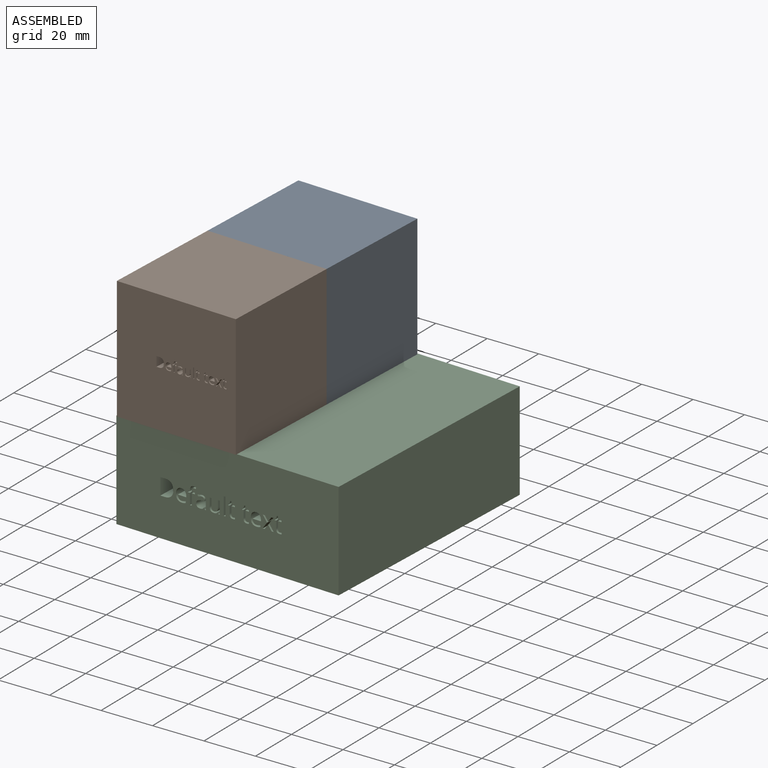
[diagram: assembled view]
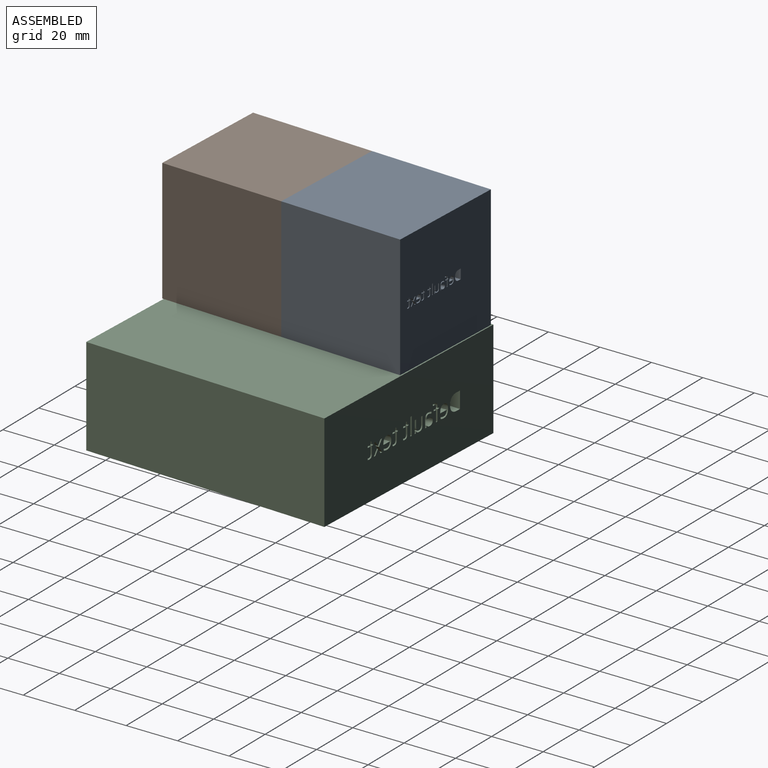
[diagram: assembled view, second angle]
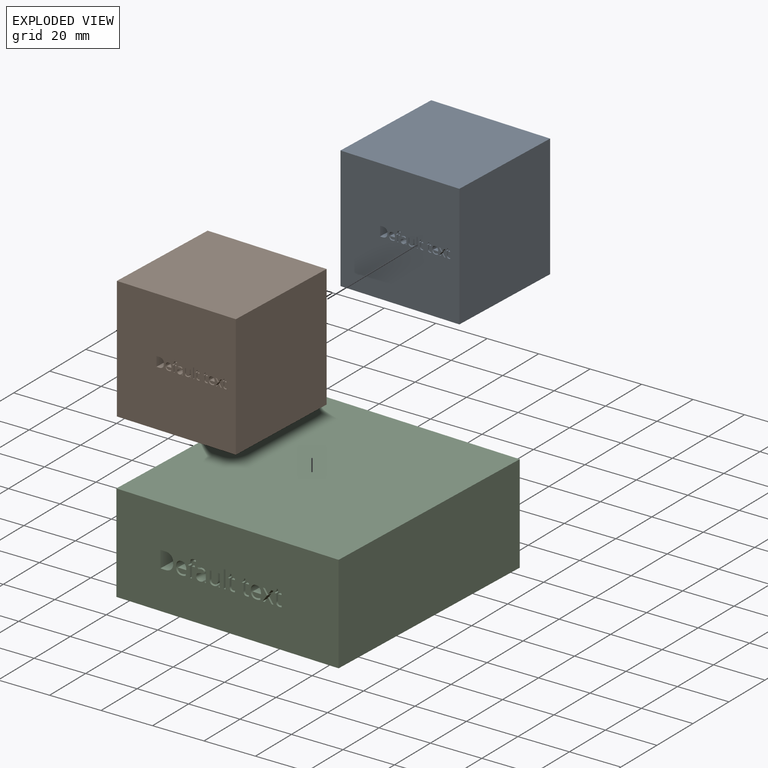
[diagram: exploded view]
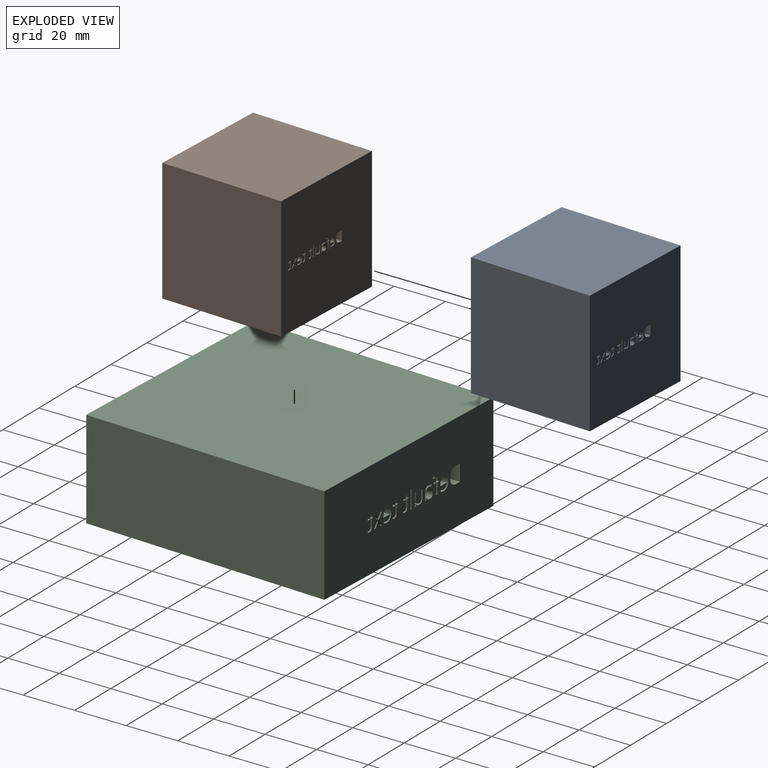
[diagram: exploded view, second angle]
ASSEMBLY  parts=3 mates=2
PART A: 167 faces, bbox 47.6x47.6x47.6 mm
  f0: extruded ~47.63x1.36mm, area 70.5mm2, adj f1,f164,f165,f166
  f1: extruded ~47.63x1.42mm, area 73.9mm2, adj f0,f2,f165,f166
  f2: extruded ~47.63x1.45mm, area 75mm2, adj f1,f3,f165,f166
  f3: plane 47.63x1.04mm, normal (0,0,1), area 49.6mm2, adj f2,f4,f165,f166
  f4: plane 47.63x3.76mm, normal (1,0,0), area 178.9mm2, adj f3,f5,f165,f166
  f5: plane 47.63x1.15mm, normal (0,0,-1), area 54.8mm2, adj f4,f164,f165,f166
  f6: plane 47.63x0.33mm, normal (-1,0,0), area 15.8mm2, adj f7,f153,f165,f166
  f7: plane 47.63x0.72mm, normal (0,0,1), area 34.1mm2, adj f6,f8,f165,f166
  f8: plane 47.63x2.48mm, normal (-1,0,0), area 118.3mm2, adj f7,f9,f165,f166
  f9: plane 47.63x0.43mm, normal (0,0,1), area 20.3mm2, adj f8,f10,f165,f166
  f10: plane 47.63x2.48mm, normal (1,0,0), area 118.3mm2, adj f9,f11,f165,f166
  f11: plane 47.63x0.5mm, normal (0,0,1), area 24mm2, adj f10,f12,f165,f166
  f12: plane 47.63x0.19mm, normal (1,0,0), area 9.2mm2, adj f11,f13,f165,f166
  f13: plane 47.63x0.5mm, normal (0.29,0,-0.96), area 25.1mm2, adj f12,f14,f165,f166
  f14: plane 47.63x0.16mm, normal (1,0,0), area 7.4mm2, adj f13,f15,f165,f166
  f15: extruded ~47.63x1.04mm, area 75.3mm2, adj f14,f16,f165,f166
  f16: extruded ~47.63x0.52mm, area 25.4mm2, adj f15,f17,f165,f166
  f17: plane 47.63x0.34mm, normal (-0.95,0,0.31), area 17.1mm2, adj f16,f18,f165,f166
  f18: extruded ~47.63x0.42mm, area 20.5mm2, adj f17,f19,f165,f166
  f19: extruded ~47.63x0.36mm, area 19.4mm2, adj f18,f20,f165,f166
  f20: extruded ~47.63x0.52mm, area 25.5mm2, adj f19,f21,f165,f166
  f21: plane 47.63x0.18mm, normal (-1,0,0), area 8.7mm2, adj f20,f153,f165,f166
  f22: plane 47.63x0.32mm, normal (0,0,1), area 15.1mm2, adj f23,f154,f165,f166
  f23: plane 47.63x0.4mm, normal (0.98,0,0.21), area 19.5mm2, adj f22,f24,f165,f166
  f24: plane 47.63x0.02mm, normal (0,0,1), area 1mm2, adj f23,f25,f165,f166
  f25: extruded ~47.63x0.42mm, area 26.5mm2, adj f24,f26,f165,f166
  f26: extruded ~47.63x0.52mm, area 25.5mm2, adj f25,f27,f165,f166
  f27: extruded ~47.63x0.66mm, area 33.7mm2, adj f26,f28,f165,f166
  f28: extruded ~47.63x0.61mm, area 32.3mm2, adj f27,f29,f165,f166
  f29: extruded ~47.63x1.36mm, area 87.3mm2, adj f28,f30,f165,f166
  f30: plane 47.63x0.48mm, normal (0.03,0,-1), area 22.8mm2, adj f29,f31,f165,f166
  f31: plane 47.63x0.18mm, normal (1,0,0), area 8.3mm2, adj f30,f32,f165,f166
  f32: extruded ~47.63x0.49mm, area 24.8mm2, adj f31,f33,f165,f166
  f33: extruded ~47.63x0.46mm, area 23.7mm2, adj f32,f34,f165,f166
  f34: extruded ~47.63x0.8mm, area 39.6mm2, adj f33,f35,f165,f166
  f35: plane 47.63x0.33mm, normal (0.93,0,0.37), area 16.8mm2, adj f34,f36,f165,f166
  f36: extruded ~47.63x0.46mm, area 23.3mm2, adj f35,f37,f165,f166
  f37: extruded ~47.63x0.5mm, area 24mm2, adj f36,f38,f165,f166
  f38: extruded ~47.63x0.75mm, area 37.9mm2, adj f37,f39,f165,f166
  f39: extruded ~47.63x0.72mm, area 37.1mm2, adj f38,f154,f165,f166
  f40: plane 47.63x1.44mm, normal (0.81,0,-0.58), area 84.4mm2, adj f41,f155,f165,f166
  f41: plane 47.63x1.37mm, normal (0.81,0,0.58), area 80.4mm2, adj f40,f42,f165,f166
  f42: plane 47.63x0.49mm, normal (0,0,-1), area 23.1mm2, adj f41,f43,f165,f166
  f43: plane 47.63x1.08mm, normal (-0.82,0,-0.57), area 62.4mm2, adj f42,f44,f165,f166
  f44: plane 47.63x1.08mm, normal (0.82,0,-0.57), area 62.3mm2, adj f43,f45,f165,f166
  f45: plane 47.63x0.48mm, normal (0,0,-1), area 22.9mm2, adj f44,f46,f165,f166
  f46: plane 47.63x1.37mm, normal (-0.81,0,0.58), area 80.4mm2, adj f45,f47,f165,f166
  f47: plane 47.63x1.44mm, normal (-0.81,0,-0.58), area 84.4mm2, adj f46,f48,f165,f166
  f48: plane 47.63x0.48mm, normal (0,0,1), area 23mm2, adj f47,f49,f165,f166
  f49: plane 47.63x1.14mm, normal (0.82,0,0.57), area 66.1mm2, adj f48,f50,f165,f166
  f50: plane 47.63x1.14mm, normal (-0.82,0,0.57), area 66.3mm2, adj f49,f155,f165,f166
  f51: extruded ~47.63x0.33mm, area 17.6mm2, adj f52,f156,f165,f166
  f52: extruded ~47.63x0.22mm, area 10.5mm2, adj f51,f53,f165,f166
  f53: extruded ~47.63x0.17mm, area 8.1mm2, adj f52,f54,f165,f166
  f54: plane 47.63x0.33mm, normal (-1,0,0), area 15.5mm2, adj f53,f55,f165,f166
  f55: extruded ~47.63x0.2mm, area 10.1mm2, adj f54,f56,f165,f166
  f56: extruded ~47.63x0.24mm, area 11.7mm2, adj f55,f57,f165,f166
  f57: extruded ~47.63x0.86mm, area 64.8mm2, adj f56,f58,f165,f166
  f58: plane 47.63x1.68mm, normal (1,0,0), area 79.8mm2, adj f57,f59,f165,f166
  f59: plane 47.63x0.4mm, normal (0,0,1), area 19.2mm2, adj f58,f60,f165,f166
  f60: plane 47.63x0.21mm, normal (1,0,0), area 9.8mm2, adj f59,f61,f165,f166
  f61: plane 47.63x0.4mm, normal (0.4,0,-0.92), area 21mm2, adj f60,f62,f165,f166
  f62: plane 47.63x0.6mm, normal (0.96,0,-0.29), area 29.9mm2, adj f61,f63,f165,f166
  f63: plane 47.63x0.25mm, normal (0,0,-1), area 11.7mm2, adj f62,f64,f165,f166
  f64: plane 47.63x0.65mm, normal (-1,0,0), area 31.1mm2, adj f63,f65,f165,f166
  f65: plane 47.63x0.82mm, normal (0,0,-1), area 38.9mm2, adj f64,f66,f165,f166
  f66: plane 47.63x0.33mm, normal (-1,0,0), area 15.8mm2, adj f65,f67,f165,f166
  f67: plane 47.63x0.82mm, normal (0,0,1), area 38.9mm2, adj f66,f68,f165,f166
  f68: plane 47.63x1.66mm, normal (-1,0,0), area 78.9mm2, adj f67,f156,f165,f166
  f69: extruded ~47.63x0.49mm, area 23.3mm2, adj f70,f157,f165,f166
  f70: extruded ~47.63x0.99mm, area 51.8mm2, adj f69,f71,f165,f166
  f71: extruded ~47.63x1.06mm, area 54.5mm2, adj f70,f72,f165,f166
  f72: extruded ~47.63x1.08mm, area 55.1mm2, adj f71,f73,f165,f166
  f73: extruded ~47.63x0.9mm, area 48.6mm2, adj f72,f74,f165,f166
  f74: extruded ~47.63x0.84mm, area 44.6mm2, adj f73,f75,f165,f166
  f75: extruded ~47.63x0.92mm, area 47.2mm2, adj f74,f76,f165,f166
  f76: plane 47.63x0.27mm, normal (-1,0,0), area 12.8mm2, adj f75,f77,f165,f166
  f77: plane 47.63x1.94mm, normal (0,0,1), area 92.4mm2, adj f76,f78,f165,f166
  f78: extruded ~47.63x0.75mm, area 38.6mm2, adj f77,f79,f165,f166
  f79: extruded ~47.63x0.67mm, area 35.2mm2, adj f78,f80,f165,f166
  f80: extruded ~47.63x0.9mm, area 44mm2, adj f79,f81,f165,f166
  f81: plane 47.63x0.38mm, normal (-1,0,0), area 18.1mm2, adj f80,f157,f165,f166
  f82: extruded ~47.63x0.33mm, area 17.6mm2, adj f83,f158,f165,f166
  f83: extruded ~47.63x0.22mm, area 10.5mm2, adj f82,f84,f165,f166
  f84: extruded ~47.63x0.17mm, area 8.1mm2, adj f83,f85,f165,f166
  f85: plane 47.63x0.33mm, normal (-1,0,0), area 15.5mm2, adj f84,f86,f165,f166
  f86: extruded ~47.63x0.2mm, area 10.1mm2, adj f85,f87,f165,f166
  f87: extruded ~47.63x0.24mm, area 11.7mm2, adj f86,f88,f165,f166
  f88: extruded ~47.63x0.86mm, area 64.8mm2, adj f87,f89,f165,f166
  f89: plane 47.63x1.68mm, normal (1,0,0), area 79.8mm2, adj f88,f90,f165,f166
  f90: plane 47.63x0.4mm, normal (0,0,1), area 19.2mm2, adj f89,f91,f165,f166
  f91: plane 47.63x0.21mm, normal (1,0,0), area 9.8mm2, adj f90,f92,f165,f166
  f92: plane 47.63x0.4mm, normal (0.4,0,-0.92), area 21mm2, adj f91,f93,f165,f166
  f93: plane 47.63x0.6mm, normal (0.96,0,-0.29), area 29.9mm2, adj f92,f94,f165,f166
  f94: plane 47.63x0.25mm, normal (0,0,-1), area 11.7mm2, adj f93,f95,f165,f166
  f95: plane 47.63x0.65mm, normal (-1,0,0), area 31.1mm2, adj f94,f96,f165,f166
  f96: plane 47.63x0.82mm, normal (0,0,-1), area 38.9mm2, adj f95,f97,f165,f166
  f97: plane 47.63x0.33mm, normal (-1,0,0), area 15.8mm2, adj f96,f98,f165,f166
  f98: plane 47.63x0.82mm, normal (0,0,1), area 38.9mm2, adj f97,f99,f165,f166
  f99: plane 47.63x1.66mm, normal (-1,0,0), area 78.9mm2, adj f98,f158,f165,f166
  f100: extruded ~47.63x0.33mm, area 17.6mm2, adj f101,f159,f165,f166
  f101: extruded ~47.63x0.22mm, area 10.5mm2, adj f100,f102,f165,f166
  f102: extruded ~47.63x0.17mm, area 8.1mm2, adj f101,f103,f165,f166
  f103: plane 47.63x0.33mm, normal (-1,0,0), area 15.5mm2, adj f102,f104,f165,f166
  f104: extruded ~47.63x0.2mm, area 10.1mm2, adj f103,f105,f165,f166
  f105: extruded ~47.63x0.24mm, area 11.7mm2, adj f104,f106,f165,f166
  f106: extruded ~47.63x0.86mm, area 64.8mm2, adj f105,f107,f165,f166
  f107: plane 47.63x1.68mm, normal (1,0,0), area 79.8mm2, adj f106,f108,f165,f166
  f108: plane 47.63x0.4mm, normal (0,0,1), area 19.2mm2, adj f107,f109,f165,f166
  f109: plane 47.63x0.21mm, normal (1,0,0), area 9.8mm2, adj f108,f110,f165,f166
  f110: plane 47.63x0.4mm, normal (0.4,0,-0.92), area 21mm2, adj f109,f111,f165,f166
  f111: plane 47.63x0.6mm, normal (0.96,0,-0.29), area 29.9mm2, adj f110,f112,f165,f166
  f112: plane 47.63x0.25mm, normal (0,0,-1), area 11.7mm2, adj f111,f113,f165,f166
  f113: plane 47.63x0.65mm, normal (-1,0,0), area 31.1mm2, adj f112,f114,f165,f166
  f114: plane 47.63x0.82mm, normal (0,0,-1), area 38.9mm2, adj f113,f115,f165,f166
  f115: plane 47.63x0.33mm, normal (-1,0,0), area 15.8mm2, adj f114,f116,f165,f166
  f116: plane 47.63x0.82mm, normal (0,0,1), area 38.9mm2, adj f115,f117,f165,f166
  f117: plane 47.63x1.66mm, normal (-1,0,0), area 78.9mm2, adj f116,f159,f165,f166
  f118: plane 47.63x4mm, normal (-1,0,0), area 190.4mm2, adj f119,f160,f165,f166
  f119: plane 47.63x0.43mm, normal (0,0,1), area 20.3mm2, adj f118,f120,f165,f166
  f120: plane 47.63x4mm, normal (1,0,0), area 190.4mm2, adj f119,f160,f165,f166
  f121: plane 47.63x0.43mm, normal (0,0,-1), area 20.6mm2, adj f122,f161,f165,f166
  f122: plane 47.63x1.83mm, normal (-1,0,0), area 87mm2, adj f121,f123,f165,f166
  f123: extruded ~47.63x0.51mm, area 26.2mm2, adj f122,f124,f165,f166
  f124: extruded ~47.63x0.49mm, area 25.4mm2, adj f123,f125,f165,f166
  f125: extruded ~47.63x0.65mm, area 33.9mm2, adj f124,f126,f165,f166
  f126: extruded ~47.63x0.79mm, area 39.6mm2, adj f125,f127,f165,f166
  f127: plane 47.63x1.48mm, normal (1,0,0), area 70.5mm2, adj f126,f128,f165,f166
  f128: plane 47.63x0.43mm, normal (0,0,-1), area 20.3mm2, adj f127,f129,f165,f166
  f129: plane 47.63x2.82mm, normal (-1,0,0), area 134.1mm2, adj f128,f130,f165,f166
  f130: plane 47.63x0.35mm, normal (0,0,1), area 16.8mm2, adj f129,f131,f165,f166
  f131: plane 47.63x0.38mm, normal (0.99,0,0.16), area 18.2mm2, adj f130,f132,f165,f166
  f132: plane 47.63x0.02mm, normal (0,0,1), area 1.1mm2, adj f131,f133,f165,f166
  f133: extruded ~47.63x0.36mm, area 23.3mm2, adj f132,f134,f165,f166
  f134: extruded ~47.63x0.53mm, area 26.1mm2, adj f133,f135,f165,f166
  f135: extruded ~47.63x0.77mm, area 39.4mm2, adj f134,f136,f165,f166
  f136: extruded ~47.63x0.78mm, area 40.2mm2, adj f135,f161,f165,f166
  f137: extruded ~47.63x0.49mm, area 23.3mm2, adj f138,f162,f165,f166
  f138: extruded ~47.63x0.99mm, area 51.8mm2, adj f137,f139,f165,f166
  f139: extruded ~47.63x1.06mm, area 54.5mm2, adj f138,f140,f165,f166
  f140: extruded ~47.63x1.08mm, area 55.1mm2, adj f139,f141,f165,f166
  f141: extruded ~47.63x0.9mm, area 48.6mm2, adj f140,f142,f165,f166
  f142: extruded ~47.63x0.84mm, area 44.6mm2, adj f141,f143,f165,f166
  f143: extruded ~47.63x0.92mm, area 47.2mm2, adj f142,f144,f165,f166
  f144: plane 47.63x0.27mm, normal (-1,0,0), area 12.8mm2, adj f143,f145,f165,f166
  f145: plane 47.63x1.94mm, normal (0,0,1), area 92.4mm2, adj f144,f146,f165,f166
  f146: extruded ~47.63x0.75mm, area 38.6mm2, adj f145,f147,f165,f166
  f147: extruded ~47.63x0.67mm, area 35.2mm2, adj f146,f148,f165,f166
  f148: extruded ~47.63x0.9mm, area 44mm2, adj f147,f149,f165,f166
  f149: plane 47.63x0.38mm, normal (-1,0,0), area 18.1mm2, adj f148,f162,f165,f166
  f150: plane 47.63x47.63mm, normal (1,0,0), area 2268.1mm2, adj f151,f163,f165,f166
  f151: plane 47.63x47.63mm, normal (0,0,1), area 2268.1mm2, adj f150,f152,f165,f166
  f152: plane 47.63x47.63mm, normal (-1,0,0), area 2268.1mm2, adj f151,f163,f165,f166
  f153: plane 47.63x0.72mm, normal (0,0,-1), area 34.1mm2, adj f6,f21,f165,f166
  f154: plane 47.63x1.92mm, normal (-1,0,0), area 91.6mm2, adj f22,f39,f165,f166
  f155: plane 47.63x0.48mm, normal (0,0,1), area 23mm2, adj f40,f50,f165,f166
  f156: extruded ~47.63x0.39mm, area 19.9mm2, adj f51,f68,f165,f166
  f157: extruded ~47.63x0.43mm, area 21.5mm2, adj f69,f81,f165,f166
  f158: extruded ~47.63x0.39mm, area 19.9mm2, adj f82,f99,f165,f166
  f159: extruded ~47.63x0.39mm, area 19.9mm2, adj f100,f117,f165,f166
  f160: plane 47.63x0.43mm, normal (0,0,-1), area 20.3mm2, adj f118,f120,f165,f166
  f161: plane 47.63x1.84mm, normal (1,0,0), area 87.8mm2, adj f121,f136,f165,f166
  f162: extruded ~47.63x0.43mm, area 21.5mm2, adj f137,f149,f165,f166
  f163: plane 47.63x47.63mm, normal (0,0,-1), area 2268.1mm2, adj f150,f152,f165,f166
  f164: extruded ~47.63x1.36mm, area 70.7mm2, adj f0,f5,f165,f166
  f165: plane 47.63x47.63mm, normal (0,-1,0), area 2229.9mm2, adj f0,f1,f2,f3,f4,f5,f6,f7
  f166: plane 47.63x47.63mm, normal (0,1,0), area 2229.9mm2, adj f0,f1,f2,f3,f4,f5,f6,f7
PART B: same geometry as A
PART C: 167 faces, bbox 95.3x88.9x38.1 mm
  f0: plane 95.25x88.9mm, normal (0,0,1), area 8467.7mm2, adj f1,f164,f165,f166
  f1: plane 95.25x38.1mm, normal (0,-1,0), area 3629mm2, adj f0,f2,f165,f166
  f2: plane 95.25x88.9mm, normal (0,0,-1), area 8467.7mm2, adj f1,f164,f165,f166
  f3: extruded ~95.25x0.84mm, area 80.5mm2, adj f4,f153,f165,f166
  f4: extruded ~95.25x1.7mm, area 178.9mm2, adj f3,f5,f165,f166
  f5: extruded ~95.25x1.82mm, area 188.2mm2, adj f4,f6,f165,f166
  f6: extruded ~95.25x1.87mm, area 190.3mm2, adj f5,f7,f165,f166
  f7: extruded ~95.25x1.56mm, area 168mm2, adj f6,f8,f165,f166
  f8: extruded ~95.25x1.45mm, area 154mm2, adj f7,f9,f165,f166
  f9: extruded ~95.25x1.59mm, area 163.1mm2, adj f8,f10,f165,f166
  f10: plane 95.25x0.47mm, normal (0,-1,0), area 44.4mm2, adj f9,f11,f165,f166
  f11: plane 95.25x3.35mm, normal (0,0,1), area 319.1mm2, adj f10,f12,f165,f166
  f12: extruded ~95.25x1.3mm, area 133.4mm2, adj f11,f13,f165,f166
  f13: extruded ~95.25x1.16mm, area 121.5mm2, adj f12,f14,f165,f166
  f14: extruded ~95.25x1.55mm, area 152.2mm2, adj f13,f15,f165,f166
  f15: plane 95.25x0.66mm, normal (0,-1,0), area 62.6mm2, adj f14,f153,f165,f166
  f16: plane 95.25x0.75mm, normal (0,0,-1), area 71mm2, adj f17,f154,f165,f166
  f17: plane 95.25x3.16mm, normal (0,-1,0), area 300.5mm2, adj f16,f18,f165,f166
  f18: extruded ~95.25x0.89mm, area 90.5mm2, adj f17,f19,f165,f166
  f19: extruded ~95.25x0.85mm, area 87.9mm2, adj f18,f20,f165,f166
  f20: extruded ~95.25x1.12mm, area 117.3mm2, adj f19,f21,f165,f166
  f21: extruded ~95.25x1.36mm, area 136.7mm2, adj f20,f22,f165,f166
  f22: plane 95.25x2.56mm, normal (0,1,0), area 243.5mm2, adj f21,f23,f165,f166
  f23: plane 95.25x0.74mm, normal (0,0,-1), area 70.2mm2, adj f22,f24,f165,f166
  f24: plane 95.25x4.86mm, normal (0,-1,0), area 463.3mm2, adj f23,f25,f165,f166
  f25: plane 95.25x0.61mm, normal (0,0,1), area 57.9mm2, adj f24,f26,f165,f166
  f26: plane 95.25x0.65mm, normal (0,0.99,0.16), area 62.9mm2, adj f25,f27,f165,f166
  f27: plane 95.25x0.04mm, normal (0,0,1), area 3.8mm2, adj f26,f28,f165,f166
  f28: extruded ~95.25x0.63mm, area 80.6mm2, adj f27,f29,f165,f166
  f29: extruded ~95.25x0.92mm, area 90mm2, adj f28,f30,f165,f166
  f30: extruded ~95.25x1.33mm, area 136.1mm2, adj f29,f31,f165,f166
  f31: extruded ~95.25x1.35mm, area 138.9mm2, adj f30,f154,f165,f166
  f32: plane 95.25x6.91mm, normal (0,-1,0), area 657.8mm2, adj f33,f155,f165,f166
  f33: plane 95.25x0.74mm, normal (0,0,1), area 70.2mm2, adj f32,f34,f165,f166
  f34: plane 95.25x6.91mm, normal (0,1,0), area 657.8mm2, adj f33,f155,f165,f166
  f35: extruded ~95.25x0.57mm, area 60.8mm2, adj f36,f156,f165,f166
  f36: extruded ~95.25x0.38mm, area 36.1mm2, adj f35,f37,f165,f166
  f37: extruded ~95.25x0.29mm, area 28.1mm2, adj f36,f38,f165,f166
  f38: plane 95.25x0.56mm, normal (0,-1,0), area 53.7mm2, adj f37,f39,f165,f166
  f39: extruded ~95.25x0.35mm, area 34.8mm2, adj f38,f40,f165,f166
  f40: extruded ~95.25x0.42mm, area 40.2mm2, adj f39,f41,f165,f166
  f41: extruded ~95.25x1.49mm, area 224mm2, adj f40,f42,f165,f166
  f42: plane 95.25x2.89mm, normal (0,1,0), area 275.7mm2, adj f41,f43,f165,f166
  f43: plane 95.25x0.7mm, normal (0,0,1), area 66.4mm2, adj f42,f44,f165,f166
  f44: plane 95.25x0.36mm, normal (0,1,0), area 33.8mm2, adj f43,f45,f165,f166
  f45: plane 95.25x0.7mm, normal (0,0.4,-0.92), area 72.6mm2, adj f44,f46,f165,f166
  f46: plane 95.25x1.04mm, normal (0,0.96,-0.29), area 103.2mm2, adj f45,f47,f165,f166
  f47: plane 95.25x0.43mm, normal (0,0,-1), area 40.6mm2, adj f46,f48,f165,f166
  f48: plane 95.25x1.13mm, normal (0,-1,0), area 107.4mm2, adj f47,f49,f165,f166
  f49: plane 95.25x1.41mm, normal (0,0,-1), area 134.4mm2, adj f48,f50,f165,f166
  f50: plane 95.25x0.57mm, normal (0,-1,0), area 54.5mm2, adj f49,f51,f165,f166
  f51: plane 95.25x1.41mm, normal (0,0,1), area 134.4mm2, adj f50,f52,f165,f166
  f52: plane 95.25x2.86mm, normal (0,-1,0), area 272.7mm2, adj f51,f156,f165,f166
  f53: extruded ~95.25x0.57mm, area 60.8mm2, adj f54,f157,f165,f166
  f54: extruded ~95.25x0.38mm, area 36.1mm2, adj f53,f55,f165,f166
  f55: extruded ~95.25x0.29mm, area 28.1mm2, adj f54,f56,f165,f166
  f56: plane 95.25x0.56mm, normal (0,-1,0), area 53.7mm2, adj f55,f57,f165,f166
  f57: extruded ~95.25x0.35mm, area 34.8mm2, adj f56,f58,f165,f166
  f58: extruded ~95.25x0.42mm, area 40.2mm2, adj f57,f59,f165,f166
  f59: extruded ~95.25x1.49mm, area 224mm2, adj f58,f60,f165,f166
  f60: plane 95.25x2.89mm, normal (0,1,0), area 275.7mm2, adj f59,f61,f165,f166
  f61: plane 95.25x0.7mm, normal (0,0,1), area 66.4mm2, adj f60,f62,f165,f166
  f62: plane 95.25x0.36mm, normal (0,1,0), area 33.8mm2, adj f61,f63,f165,f166
  f63: plane 95.25x0.7mm, normal (0,0.4,-0.92), area 72.6mm2, adj f62,f64,f165,f166
  f64: plane 95.25x1.04mm, normal (0,0.96,-0.29), area 103.2mm2, adj f63,f65,f165,f166
  f65: plane 95.25x0.43mm, normal (0,0,-1), area 40.6mm2, adj f64,f66,f165,f166
  f66: plane 95.25x1.13mm, normal (0,-1,0), area 107.4mm2, adj f65,f67,f165,f166
  f67: plane 95.25x1.41mm, normal (0,0,-1), area 134.4mm2, adj f66,f68,f165,f166
  f68: plane 95.25x0.57mm, normal (0,-1,0), area 54.5mm2, adj f67,f69,f165,f166
  f69: plane 95.25x1.41mm, normal (0,0,1), area 134.4mm2, adj f68,f70,f165,f166
  f70: plane 95.25x2.86mm, normal (0,-1,0), area 272.7mm2, adj f69,f157,f165,f166
  f71: extruded ~95.25x0.84mm, area 80.5mm2, adj f72,f158,f165,f166
  f72: extruded ~95.25x1.7mm, area 178.9mm2, adj f71,f73,f165,f166
  f73: extruded ~95.25x1.82mm, area 188.2mm2, adj f72,f74,f165,f166
  f74: extruded ~95.25x1.87mm, area 190.3mm2, adj f73,f75,f165,f166
  f75: extruded ~95.25x1.56mm, area 168mm2, adj f74,f76,f165,f166
  f76: extruded ~95.25x1.45mm, area 154mm2, adj f75,f77,f165,f166
  f77: extruded ~95.25x1.59mm, area 163.1mm2, adj f76,f78,f165,f166
  f78: plane 95.25x0.47mm, normal (0,-1,0), area 44.4mm2, adj f77,f79,f165,f166
  f79: plane 95.25x3.35mm, normal (0,0,1), area 319.1mm2, adj f78,f80,f165,f166
  f80: extruded ~95.25x1.3mm, area 133.4mm2, adj f79,f81,f165,f166
  f81: extruded ~95.25x1.16mm, area 121.5mm2, adj f80,f82,f165,f166
  f82: extruded ~95.25x1.55mm, area 152.2mm2, adj f81,f83,f165,f166
  f83: plane 95.25x0.66mm, normal (0,-1,0), area 62.6mm2, adj f82,f158,f165,f166
  f84: extruded ~95.25x0.57mm, area 60.8mm2, adj f85,f159,f165,f166
  f85: extruded ~95.25x0.38mm, area 36.1mm2, adj f84,f86,f165,f166
  f86: extruded ~95.25x0.29mm, area 28.1mm2, adj f85,f87,f165,f166
  f87: plane 95.25x0.56mm, normal (0,-1,0), area 53.7mm2, adj f86,f88,f165,f166
  f88: extruded ~95.25x0.35mm, area 34.8mm2, adj f87,f89,f165,f166
  f89: extruded ~95.25x0.42mm, area 40.2mm2, adj f88,f90,f165,f166
  f90: extruded ~95.25x1.49mm, area 224mm2, adj f89,f91,f165,f166
  f91: plane 95.25x2.89mm, normal (0,1,0), area 275.7mm2, adj f90,f92,f165,f166
  f92: plane 95.25x0.7mm, normal (0,0,1), area 66.4mm2, adj f91,f93,f165,f166
  f93: plane 95.25x0.36mm, normal (0,1,0), area 33.8mm2, adj f92,f94,f165,f166
  f94: plane 95.25x0.7mm, normal (0,0.4,-0.92), area 72.6mm2, adj f93,f95,f165,f166
  f95: plane 95.25x1.04mm, normal (0,0.96,-0.29), area 103.2mm2, adj f94,f96,f165,f166
  f96: plane 95.25x0.43mm, normal (0,0,-1), area 40.6mm2, adj f95,f97,f165,f166
  f97: plane 95.25x1.13mm, normal (0,-1,0), area 107.4mm2, adj f96,f98,f165,f166
  f98: plane 95.25x1.41mm, normal (0,0,-1), area 134.4mm2, adj f97,f99,f165,f166
  f99: plane 95.25x0.57mm, normal (0,-1,0), area 54.5mm2, adj f98,f100,f165,f166
  f100: plane 95.25x1.41mm, normal (0,0,1), area 134.4mm2, adj f99,f101,f165,f166
  f101: plane 95.25x2.86mm, normal (0,-1,0), area 272.7mm2, adj f100,f159,f165,f166
  f102: plane 95.25x2.49mm, normal (0,0.81,-0.58), area 291.5mm2, adj f103,f160,f165,f166
  f103: plane 95.25x2.37mm, normal (0,0.81,0.58), area 277.7mm2, adj f102,f104,f165,f166
  f104: plane 95.25x0.84mm, normal (0,0,-1), area 79.9mm2, adj f103,f105,f165,f166
  f105: plane 95.25x1.86mm, normal (0,-0.82,-0.57), area 215.4mm2, adj f104,f106,f165,f166
  f106: plane 95.25x1.86mm, normal (0,0.82,-0.57), area 215.2mm2, adj f105,f107,f165,f166
  f107: plane 95.25x0.83mm, normal (0,0,-1), area 79.1mm2, adj f106,f108,f165,f166
  f108: plane 95.25x2.37mm, normal (0,-0.81,0.58), area 277.7mm2, adj f107,f109,f165,f166
  f109: plane 95.25x2.49mm, normal (0,-0.81,-0.58), area 291.5mm2, adj f108,f110,f165,f166
  f110: plane 95.25x0.83mm, normal (0,0,1), area 79.4mm2, adj f109,f111,f165,f166
  f111: plane 95.25x1.97mm, normal (0,0.82,0.57), area 228.3mm2, adj f110,f112,f165,f166
  f112: plane 95.25x1.97mm, normal (0,-0.82,0.57), area 229mm2, adj f111,f160,f165,f166
  f113: plane 95.25x0.55mm, normal (0,0,1), area 52.1mm2, adj f114,f161,f165,f166
  f114: plane 95.25x0.69mm, normal (0,0.98,0.21), area 67.5mm2, adj f113,f115,f165,f166
  f115: plane 95.25x0.04mm, normal (0,0,1), area 3.4mm2, adj f114,f116,f165,f166
  f116: extruded ~95.25x0.73mm, area 91.7mm2, adj f115,f117,f165,f166
  f117: extruded ~95.25x0.9mm, area 88.1mm2, adj f116,f118,f165,f166
  f118: extruded ~95.25x1.13mm, area 116.3mm2, adj f117,f119,f165,f166
  f119: extruded ~95.25x1.06mm, area 111.7mm2, adj f118,f120,f165,f166
  f120: extruded ~95.25x2.36mm, area 301.4mm2, adj f119,f121,f165,f166
  f121: plane 95.25x0.83mm, normal (0,0.03,-1), area 78.6mm2, adj f120,f122,f165,f166
  f122: plane 95.25x0.3mm, normal (0,1,0), area 28.8mm2, adj f121,f123,f165,f166
  f123: extruded ~95.25x0.85mm, area 85.7mm2, adj f122,f124,f165,f166
  f124: extruded ~95.25x0.79mm, area 81.8mm2, adj f123,f125,f165,f166
  f125: extruded ~95.25x1.37mm, area 136.8mm2, adj f124,f126,f165,f166
  f126: plane 95.25x0.56mm, normal (0,0.93,0.37), area 57.9mm2, adj f125,f127,f165,f166
  f127: extruded ~95.25x0.79mm, area 80.6mm2, adj f126,f128,f165,f166
  f128: extruded ~95.25x0.86mm, area 82.8mm2, adj f127,f129,f165,f166
  f129: extruded ~95.25x1.29mm, area 131.1mm2, adj f128,f130,f165,f166
  f130: extruded ~95.25x1.24mm, area 128.1mm2, adj f129,f161,f165,f166
  f131: plane 95.25x0.57mm, normal (0,-1,0), area 54.5mm2, adj f132,f162,f165,f166
  f132: plane 95.25x1.24mm, normal (0,0,1), area 117.9mm2, adj f131,f133,f165,f166
  f133: plane 95.25x4.29mm, normal (0,-1,0), area 408.8mm2, adj f132,f134,f165,f166
  f134: plane 95.25x0.74mm, normal (0,0,1), area 70.2mm2, adj f133,f135,f165,f166
  f135: plane 95.25x4.29mm, normal (0,1,0), area 408.8mm2, adj f134,f136,f165,f166
  f136: plane 95.25x0.87mm, normal (0,0,1), area 82.8mm2, adj f135,f137,f165,f166
  f137: plane 95.25x0.33mm, normal (0,1,0), area 31.7mm2, adj f136,f138,f165,f166
  f138: plane 95.25x0.87mm, normal (0,0.29,-0.96), area 86.6mm2, adj f137,f139,f165,f166
  f139: plane 95.25x0.27mm, normal (0,1,0), area 25.7mm2, adj f138,f140,f165,f166
  f140: extruded ~95.25x1.79mm, area 260mm2, adj f139,f141,f165,f166
  f141: extruded ~95.25x0.91mm, area 87.8mm2, adj f140,f142,f165,f166
  f142: plane 95.25x0.59mm, normal (0,-0.95,0.31), area 59.2mm2, adj f141,f143,f165,f166
  f143: extruded ~95.25x0.73mm, area 70.8mm2, adj f142,f144,f165,f166
  f144: extruded ~95.25x0.62mm, area 67.1mm2, adj f143,f145,f165,f166
  f145: extruded ~95.25x0.89mm, area 88.1mm2, adj f144,f146,f165,f166
  f146: plane 95.25x0.32mm, normal (0,-1,0), area 30mm2, adj f145,f162,f165,f166
  f147: extruded ~95.25x2.34mm, area 243.6mm2, adj f148,f163,f165,f166
  f148: extruded ~95.25x2.46mm, area 255.2mm2, adj f147,f149,f165,f166
  f149: extruded ~95.25x2.51mm, area 258.9mm2, adj f148,f150,f165,f166
  f150: plane 95.25x1.8mm, normal (0,0,1), area 171.2mm2, adj f149,f151,f165,f166
  f151: plane 95.25x6.49mm, normal (0,1,0), area 618mm2, adj f150,f152,f165,f166
  f152: plane 95.25x1.99mm, normal (0,0,-1), area 189.4mm2, adj f151,f163,f165,f166
  f153: extruded ~95.25x0.74mm, area 74.1mm2, adj f3,f15,f165,f166
  f154: plane 95.25x3.18mm, normal (0,1,0), area 303.1mm2, adj f16,f31,f165,f166
  f155: plane 95.25x0.74mm, normal (0,0,-1), area 70.2mm2, adj f32,f34,f165,f166
  f156: extruded ~95.25x0.67mm, area 68.7mm2, adj f35,f52,f165,f166
  f157: extruded ~95.25x0.67mm, area 68.7mm2, adj f53,f70,f165,f166
  f158: extruded ~95.25x0.74mm, area 74.1mm2, adj f71,f83,f165,f166
  f159: extruded ~95.25x0.67mm, area 68.7mm2, adj f84,f101,f165,f166
  f160: plane 95.25x0.83mm, normal (0,0,1), area 79.4mm2, adj f102,f112,f165,f166
  f161: plane 95.25x3.32mm, normal (0,-1,0), area 316.2mm2, adj f113,f130,f165,f166
  f162: plane 95.25x1.24mm, normal (0,0,-1), area 117.9mm2, adj f131,f146,f165,f166
  f163: extruded ~95.25x2.35mm, area 244.4mm2, adj f147,f152,f165,f166
  f164: plane 95.25x38.1mm, normal (0,1,0), area 3629mm2, adj f0,f2,f165,f166
  f165: plane 88.9x38.1mm, normal (1,0,0), area 3273.1mm2, adj f0,f1,f2,f3,f4,f5,f6,f7
  f166: plane 88.9x38.1mm, normal (-1,0,0), area 3273.1mm2, adj f0,f1,f2,f3,f4,f5,f6,f7
PLACE A rot(axis=(0,0,-1),2.4deg) t=(-56.71,84.94,-60.41)mm
PLACE B rot(axis=(0,0,-1),2.4deg) t=(-58.67,37.36,-60.41)mm
PLACE C rot(axis=(0,0,-1),92.3deg) t=(68.25,80.41,-45.68)mm
MATE fastened B.f166 <-> A.f165  axis (0.04,1,0) through (4.11,34.78,-35.23)mm
MATE planar B.f163 <-> C.f0  axis (0,0,-1) through (-21.57,-11.83,-59.04)mm
